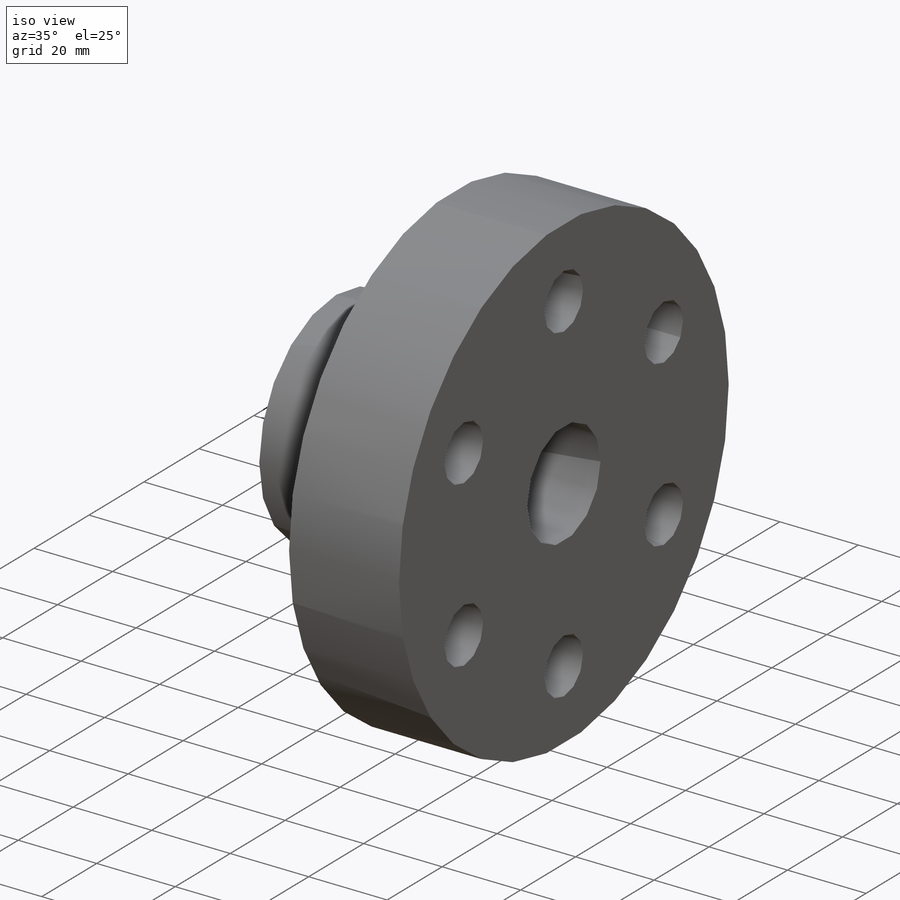
[diagram: iso view]
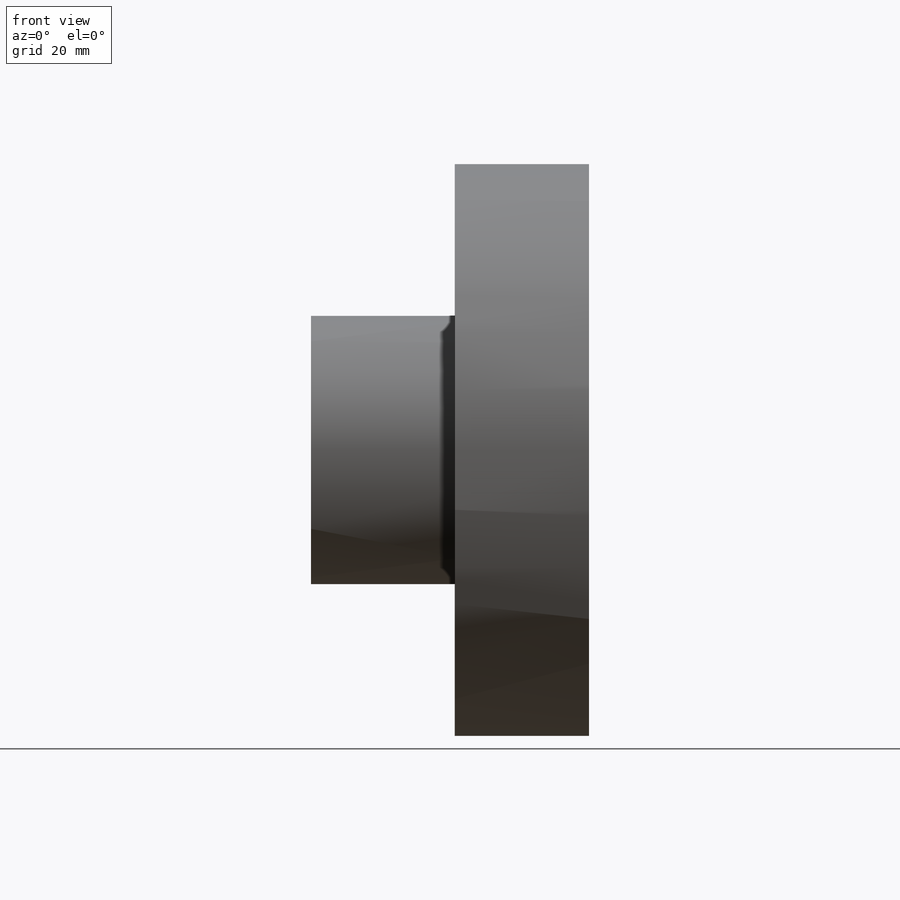
[diagram: front view]
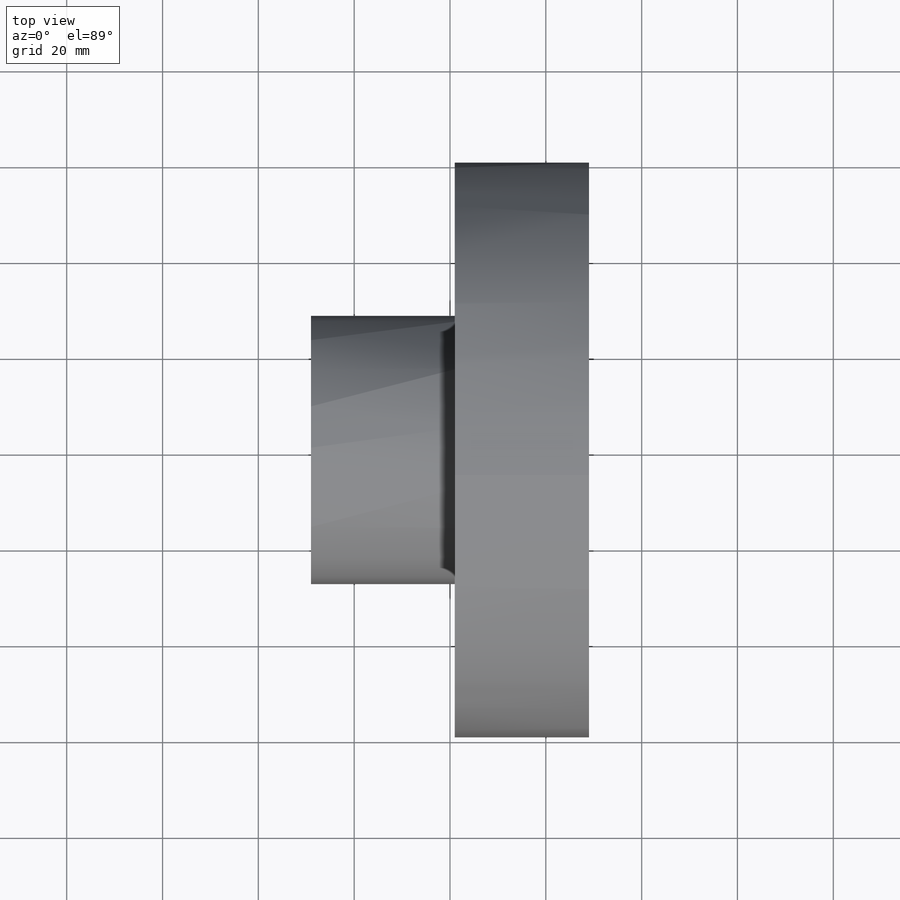
[diagram: top view]
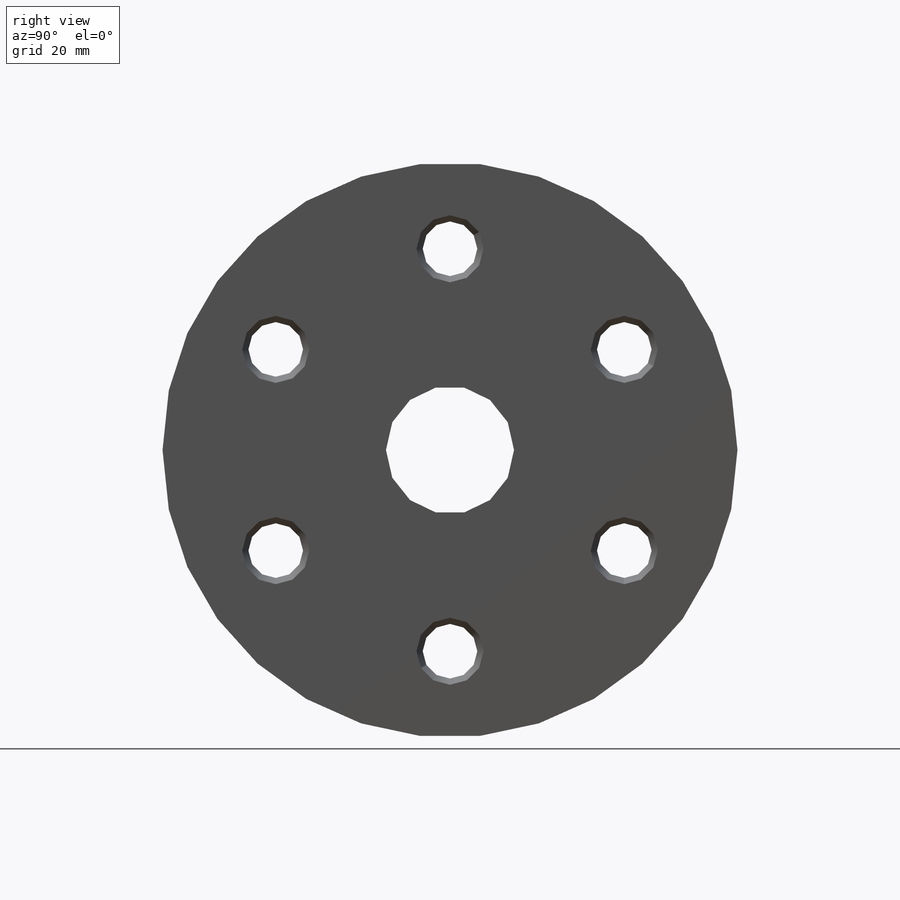
[diagram: right view]
SOLIDWORKS PART (.sldprt)
format: sldprt  version: not decoded by parser v0  size: 370,688 bytes
history: native  units: mm
features: plane x3, pattern_circular x2, cut_revolve x2, material x1, sketch x1, revolve x1, cut_extrude x1 + 2 further entries (+10 scaffold rows collapsed)
feature tree (23):
  scaffold x10  (default folders/planes/origin — collapsed)
  material  "Материал <не указан>"
  plane  "Спереди"
  plane  "Сверху"
  plane  "Справа"
  sketch  "Эскиз1"  dims[nominalDiameter=30.0mm D=120.0mm lpm_=60.0mm d_st=56.0mm B=32.0mm]
  revolve  "Повернуть1"  Angle=360deg
  "Эскиз2"  d_0=28mm
  cut_extrude  "Вырез-Вытянуть1"  [1 undecoded]
  pattern_circular  "Круговой массив1"  Count=4 Angle=90deg fingers=4
  "Эскиз3"  l_nak=13mm d_p=14mm
  cut_revolve  "Вырез-Повернуть1"  Angle=360deg
  pattern_circular  "Круговой массив2"  [2 undecoded]
  cut_revolve  "fingers"  Angle=90deg
decode coverage: 5 of 7 modeling features carry decoded parameters; 2 rows unclassified (native names shown)
note: 3 parameter values undecoded
note: suppression state not decoded; provenance and decode notes live in map.json
